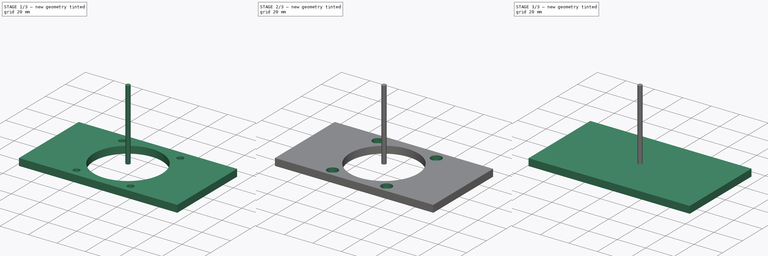
[diagram: build sequence overview — one tinted view per stage of 3, left to right]
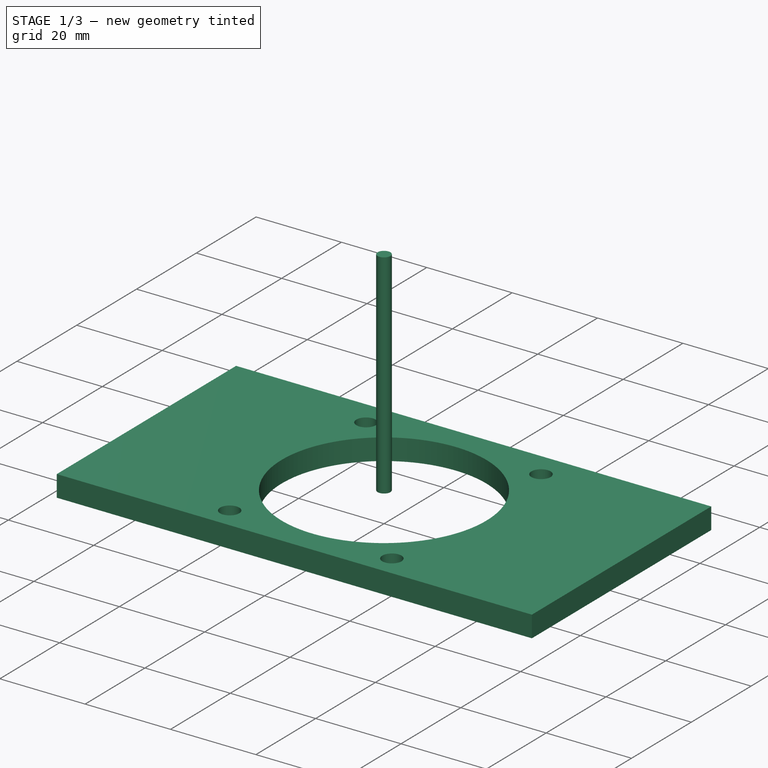
[diagram: stage 1 of 3 — iso view after this stage's code; geometry added in this stage tinted green]
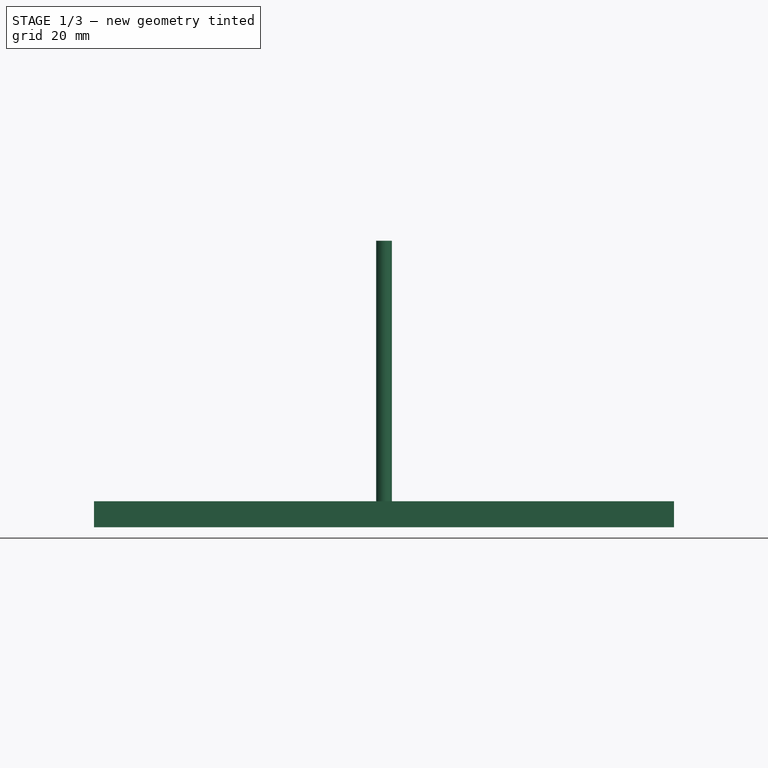
[diagram: stage 1 of 3 — front view after this stage's code; geometry added in this stage tinted green]
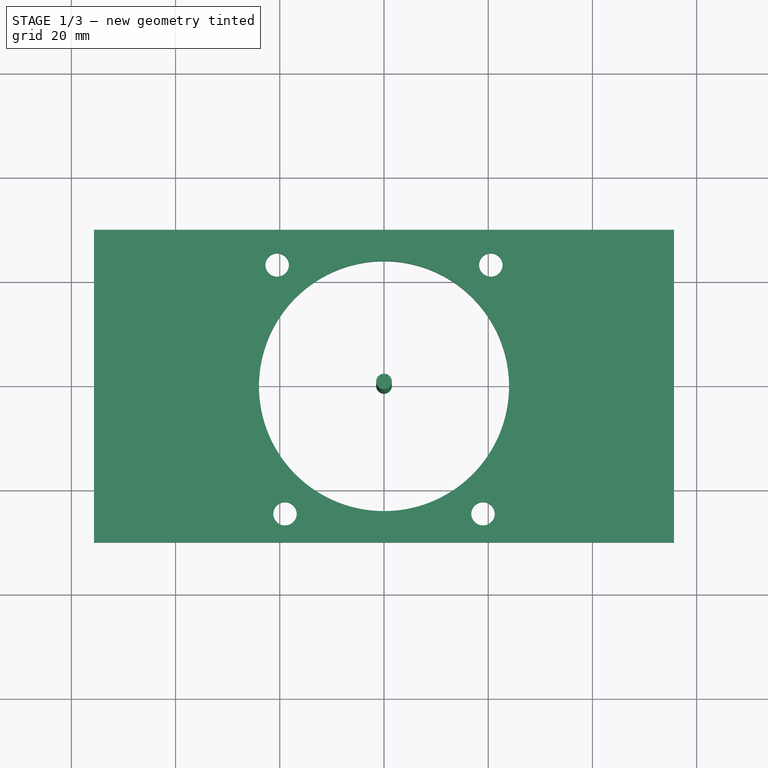
[diagram: stage 1 of 3 — top view after this stage's code; geometry added in this stage tinted green]
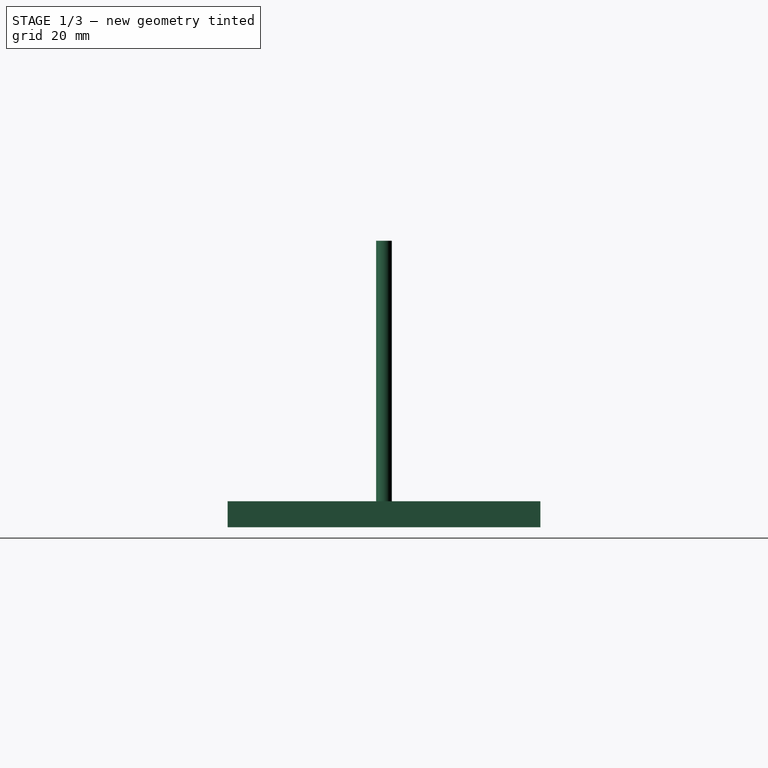
[diagram: stage 1 of 3 — right view after this stage's code; geometry added in this stage tinted green]
FCSTD DOCUMENT  (FreeCAD 1.0R38806 (Git))
Label: AngleGrinderBracket
License: All rights reserved
LicenseURL: http://en.wikipedia.org/wiki/All_rights_reserved
objects: Path::FeaturePython×4, Part::FeaturePython×3, App::DocumentObjectGroup×3, Sketcher::SketchObject×2, PartDesign::Pad×1, PartDesign::Pocket×1, PartDesign::Body×1, App::FeaturePython×1
note: 16 computed .brp shape members not serialized (recipe doc carries the construction recipe); baked Part::Feature solids carry a one-line shape summary decoded from their .brp

FEATURE [Sketcher::SketchObject] Sketch
  ArcFitTolerance = 0
  AttachmentSupport = -> [XY_Plane]
  FullyConstrained = true
  MakeInternals = false
  MapMode = 5
  sketch-geometry (14):
    g0: Circle [constr] CenterX=0 CenterY=0 CenterZ=0 NormalX=0 NormalY=0 NormalZ=1 AngleXU=0 Radius=21.15
    g1: Circle CenterX=0 CenterY=0 CenterZ=0 NormalX=0 NormalY=0 NormalZ=1 AngleXU=0 Radius=24
    g2: Circle [constr] CenterX=0 CenterY=0 CenterZ=0 NormalX=0 NormalY=0 NormalZ=1 AngleXU=0 Radius=31
    g3: LineSegment [constr] StartX=-20.5 StartY=23.254 StartZ=0 EndX=20.5 EndY=23.254 EndZ=0
    g4: LineSegment [constr] StartX=-19 StartY=-24.4949 StartZ=0 EndX=19 EndY=-24.4949 EndZ=0
    g5: Circle CenterX=-20.5 CenterY=23.254 CenterZ=0 NormalX=0 NormalY=0 NormalZ=1 AngleXU=0 Radius=2.25
    g6: Circle CenterX=20.5 CenterY=23.254 CenterZ=0 NormalX=0 NormalY=0 NormalZ=1 AngleXU=0 Radius=2.25
    g7: Circle CenterX=-19 CenterY=-24.4949 CenterZ=0 NormalX=0 NormalY=0 NormalZ=1 AngleXU=0 Radius=2.25
    g8: Circle CenterX=19 CenterY=-24.4949 CenterZ=0 NormalX=0 NormalY=0 NormalZ=1 AngleXU=0 Radius=2.25
    g9: LineSegment StartX=-55.651 StartY=-30 StartZ=0 EndX=-55.651 EndY=30 EndZ=0
    g10: LineSegment StartX=-55.651 StartY=30 StartZ=0 EndX=55.651 EndY=30 EndZ=0
    g11: LineSegment StartX=55.651 StartY=30 StartZ=0 EndX=55.651 EndY=-30 EndZ=0
    g12: LineSegment StartX=55.651 StartY=-30 StartZ=0 EndX=-55.651 EndY=-30 EndZ=0
    g13: GeomPoint [constr] X=0 Y=0 Z=0
  constraints (32):
    c: Coincident(g0,g-1)
    c: Diameter(g0) = 42.3
    c: Coincident(g1,g0)
    c: Diameter(g1) = 48
    c: Coincident(g2,g0)
    c: Radius(g2) = 31
    c: PointOnObject(g3,g2)
    c: Symmetric(g3,g3,g-2)
    c: DistanceX(g3,g3) = 41
    c: PointOnObject(g4,g2)
    c: Symmetric(g4,g4,g-2)
    c: DistanceX(g4,g4) = 38
    c: Coincident(g5,g3)
    c: Coincident(g6,g3)
    c: Coincident(g7,g4)
    c: Coincident(g8,g4)
    c: Equal(g5,g6)
    c: Equal(g5,g7)
    c: Equal(g5,g8)
    c: Radius(g5) = 2.25
    c: Coincident(g9,g10)
    c: Coincident(g10,g11)
    c: Coincident(g11,g12)
    c: Coincident(g12,g9)
    c: Horizontal(g10)
    c: Horizontal(g12)
    c: Vertical(g9)
    c: Vertical(g11)
    c: Symmetric(g10,g9,g13)
    c: Coincident(g13,g1)
    c: DistanceX(g10,g10) = 111.302
    c: DistanceY(g11,g11) = 60
FEATURE [PartDesign::Pad] Pad
  Direction = (0,0,1)
  Length = 5
  Length2 = 10
  Profile = -> Sketch
  ReferenceAxis = -> Sketch [N_Axis]
  Refine = true
  Reversed = true
  Suppressed = false
  Type = 0
FEATURE [Part::FeaturePython] ToolBit001  label="3mm Endmill"  # Path/CAM toolbit (typed FeaturePython)
  BitPropertyNames = Chipload | CuttingEdgeHeight | Diameter | Flutes | Length | Material | ShankDiameter | SpindleDirection
  BitShape = <path>
  Chipload = 0
  CuttingEdgeHeight = 15
  Diameter = 3
  File = <userpath>/Desktop/CNC/ToolBit/Bit/3mm_Endmill.fctb
  Flutes = 0
  Length = 50
  Material = 0
  ShankDiameter = 3
  ShapeName = endmill
  SpindleDirection = 0
FEATURE [Path::FeaturePython] _mm_Endmill  label="3mm Endmill001"  # Path/CAM operation (typed FeaturePython)
  HorizFeed = 3.33333
  HorizRapid = 0
  SpindleDir = 0
  SpindleSpeed = 10000
  Tool = -> ToolBit001
  ToolNumber = 2
  VertFeed = 3.33333
  VertRapid = 0
  expr: HorizRapid = SetupSheet.HorizRapid
  expr: VertRapid = SetupSheet.VertRapid
FEATURE [App::DocumentObjectGroup] Tools
  Group = -> [_mm_Endmill]
FEATURE [Path::FeaturePython] Adaptive  # Path/CAM operation (typed FeaturePython)
  Active = true
  Base = -> [Clone]
  ClearanceHeight = 15
  CoolantMode = 0
  CycleTime = 00:03:50
  ExtensionCorners = true
  ExtensionLengthDefault = 1.5
  FinalDepth = -3
  FinishDepth = 0
  FinishingProfile = true
  ForceInsideOut = false
  HelixAngle = 5
  HelixConeAngle = 0
  HelixDiameterLimit = 1
  KeepToolDownRatio = 3
  LiftDistance = 0
  OpFinalDepth = -3
  OpStartDepth = 0
  OpStockZMax = 0
  OpStockZMin = -5
  OpToolDiameter = 3
  OperationType = 0
  SafeHeight = 13
  Side = 1
  StartDepth = 0
  StepDown = 3
  StepOver = 20
  StockToLeave = 0
  StopProcessing = false
  Stopped = false
  Tolerance = 0.1
  ToolController = -> _mm_Endmill
  UseHelixArcs = false
  UseOutline = false
  expr: ClearanceHeight = OpStockZMax + SetupSheet.ClearanceHeightOffset + 10 mm
  expr: ExtensionLengthDefault = OpToolDiameter / 2
  expr: FinalDepth = OpFinalDepth
  expr: SafeHeight = OpStockZMax + SetupSheet.SafeHeightOffset + 10 mm
  expr: StartDepth = OpStartDepth
  expr: StepDown = OpToolDiameter
FEATURE [Path::FeaturePython] Adaptive001  # Path/CAM operation (typed FeaturePython)
  Active = true
  Base = -> [Clone]
  ClearanceHeight = 5
  CoolantMode = 0
  CycleTime = 00:20:02
  ExtensionCorners = true
  ExtensionLengthDefault = 1.5
  FinalDepth = -5
  FinishDepth = 0
  FinishingProfile = true
  ForceInsideOut = false
  HelixAngle = 5
  HelixConeAngle = 0
  HelixDiameterLimit = 1
  KeepToolDownRatio = 3
  LiftDistance = 0
  OpFinalDepth = -5
  OpStartDepth = 0
  OpStockZMax = 0
  OpStockZMin = -5
  OpToolDiameter = 3
  OperationType = 0
  SafeHeight = 3
  Side = 1
  StartDepth = 0
  StepDown = 6
  StepOver = 20
  StockToLeave = 0
  StopProcessing = false
  Stopped = false
  Tolerance = 0.1
  ToolController = -> _mm_Endmill
  UseHelixArcs = false
  UseOutline = false
  expr: ClearanceHeight = OpStockZMax + SetupSheet.ClearanceHeightOffset
  expr: ExtensionLengthDefault = OpToolDiameter / 2
  expr: FinalDepth = OpFinalDepth
  expr: SafeHeight = OpStockZMax + SetupSheet.SafeHeightOffset
  expr: StartDepth = OpStartDepth
  expr: StepDown = OpToolDiameter * 2
FEATURE [App::DocumentObjectGroup] Operations
  Group = -> [Adaptive,Adaptive001]
FEATURE [Path::FeaturePython] Job  # Path/CAM operation (typed FeaturePython)
  CycleTime = 00:23:52
  Fixtures = G54
  GeometryTolerance = 0.01
  JobType = 0
  Model = -> Model
  Operations = -> Operations
  OrderOutputBy = 0
  PostProcessor = 11
  PostProcessorArgs = --bcnc
  PostProcessorOutputFile = %D%d.nc
  SetupSheet = -> SetupSheet
  SplitOutput = false
  Stock = -> Stock
  Tools = -> Tools
note: 1 file-system path scrubbed to <path> (originals preserved in the JSON sidecar)
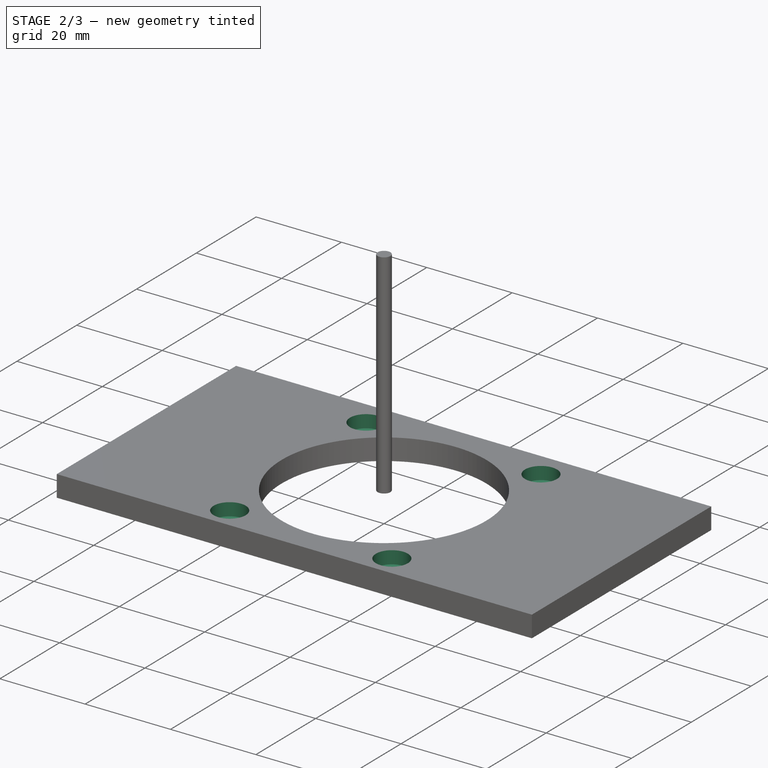
[diagram: stage 2 of 3 — iso view after this stage's code; geometry added in this stage tinted green]
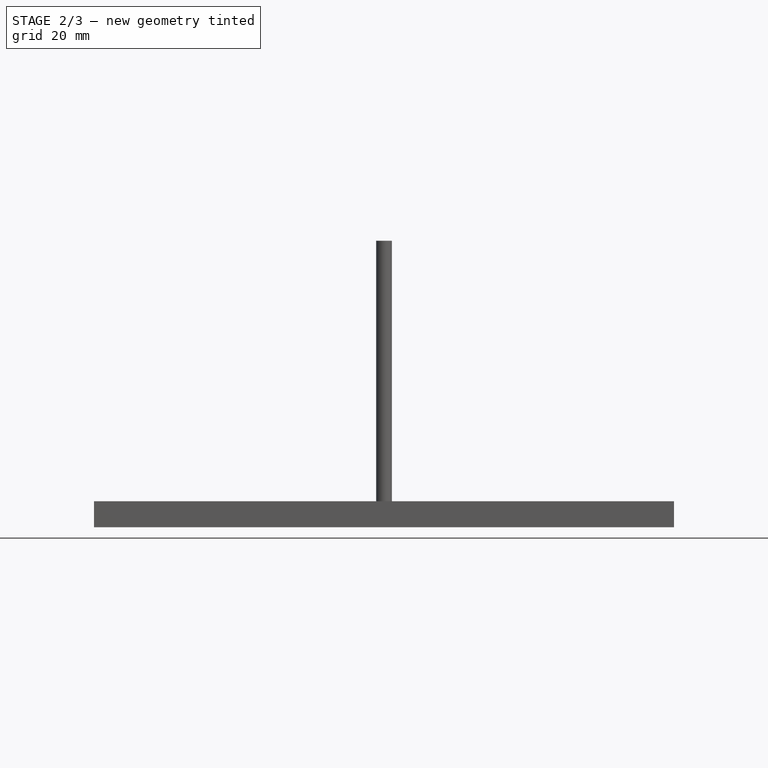
[diagram: stage 2 of 3 — front view after this stage's code; geometry added in this stage tinted green]
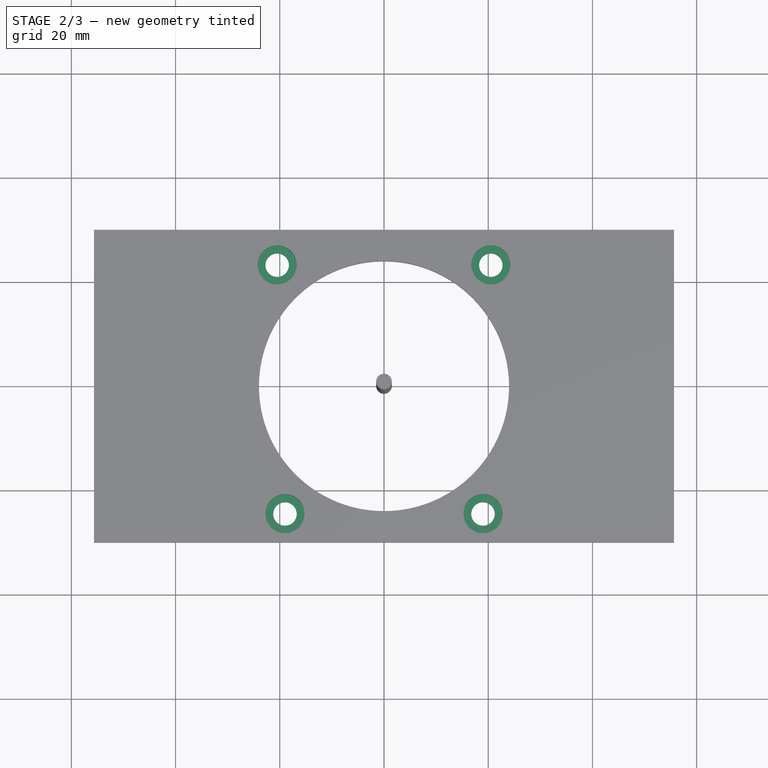
[diagram: stage 2 of 3 — top view after this stage's code; geometry added in this stage tinted green]
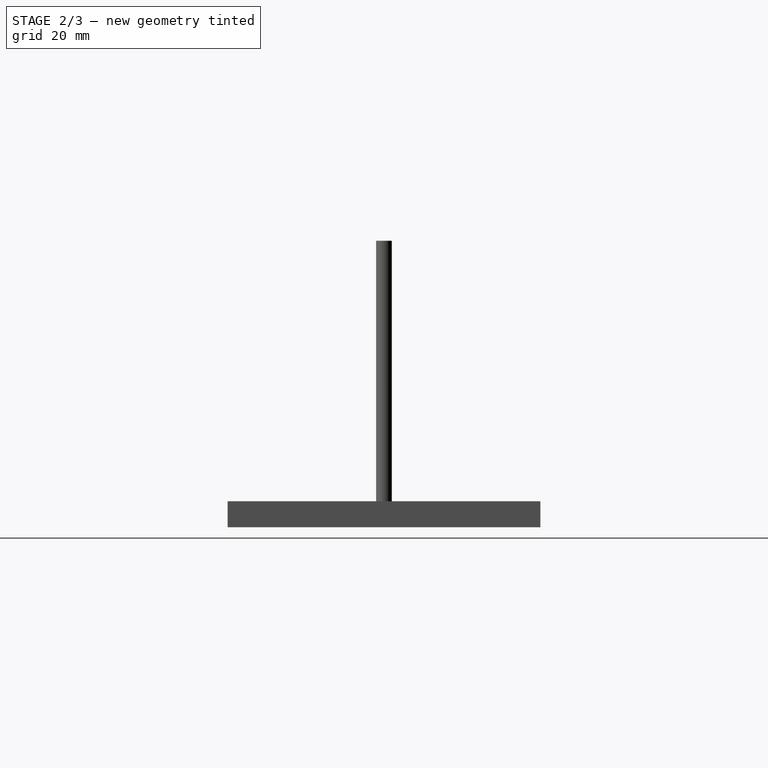
[diagram: stage 2 of 3 — right view after this stage's code; geometry added in this stage tinted green]
FEATURE [Sketcher::SketchObject] Sketch001
  ArcFitTolerance = 0
  AttachmentSupport = -> [Pad]
  ExternalGeometry = -> [Pad]
  FullyConstrained = true
  MakeInternals = false
  MapMode = 5
  sketch-geometry (4):
    g0: Circle CenterX=-20.5 CenterY=23.254 CenterZ=0 NormalX=0 NormalY=0 NormalZ=1 AngleXU=0 Radius=3.75
    g1: Circle CenterX=20.5 CenterY=23.254 CenterZ=0 NormalX=0 NormalY=0 NormalZ=1 AngleXU=0 Radius=3.75
    g2: Circle CenterX=-19 CenterY=-24.4949 CenterZ=0 NormalX=0 NormalY=0 NormalZ=1 AngleXU=0 Radius=3.75
    g3: Circle CenterX=19 CenterY=-24.4949 CenterZ=0 NormalX=0 NormalY=0 NormalZ=1 AngleXU=0 Radius=3.75
  constraints (8):
    c: Coincident(g0,g-3)
    c: Coincident(g1,g-4)
    c: Coincident(g2,g-5)
    c: Coincident(g3,g-6)
    c: Equal(g0,g1)
    c: Equal(g0,g2)
    c: Equal(g0,g3)
    c: Diameter(g0) = 7.5
FEATURE [PartDesign::Pocket] Pocket
  BaseFeature = -> Pad
  Direction = (0,0,-1)
  Length = 3
  Length2 = 5
  Profile = -> Sketch001
  ReferenceAxis = -> Sketch001 [N_Axis]
  Refine = true
  Suppressed = false
  Type = 0
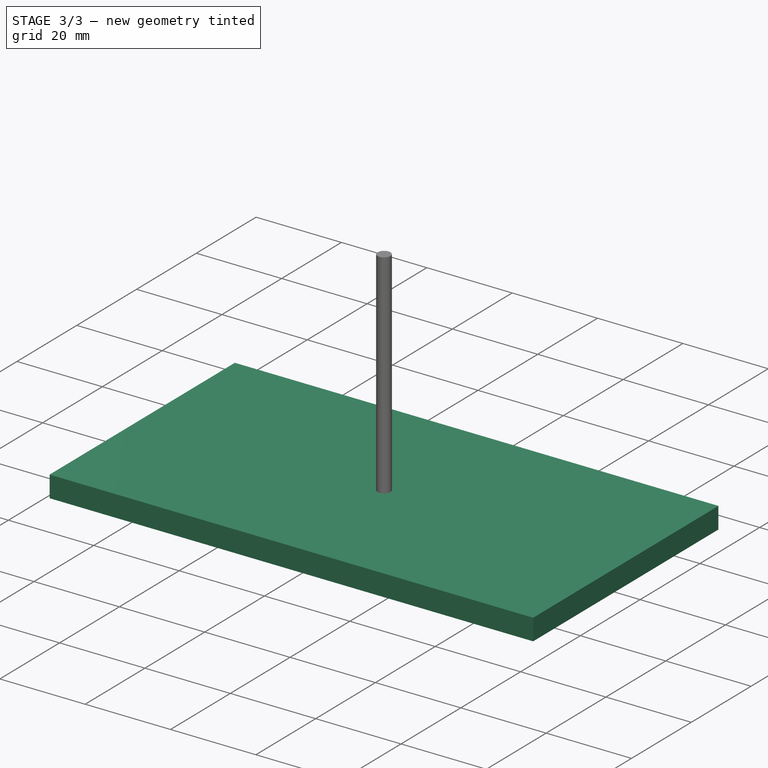
[diagram: stage 3 of 3 — iso view after this stage's code; geometry added in this stage tinted green]
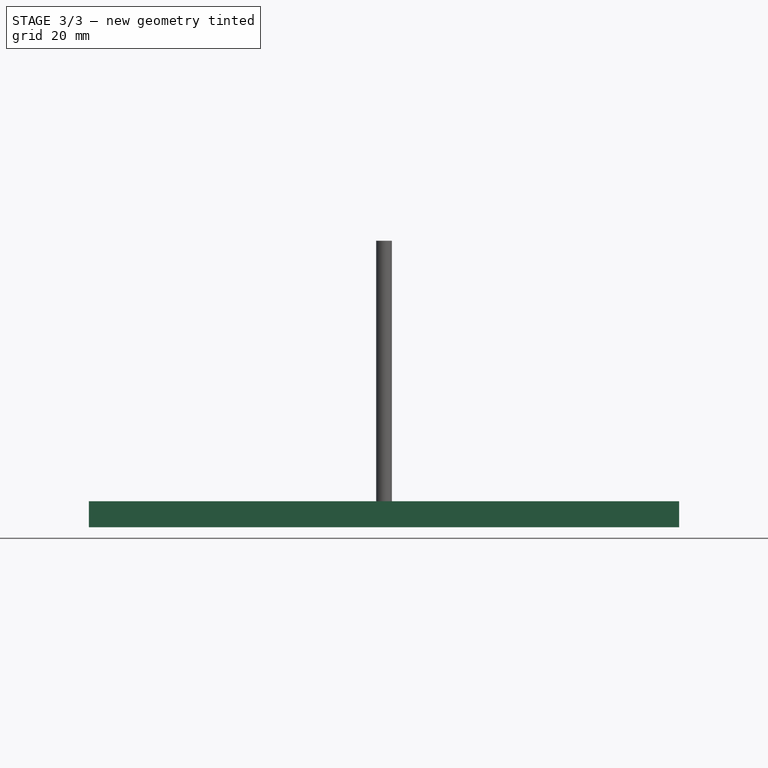
[diagram: stage 3 of 3 — front view after this stage's code; geometry added in this stage tinted green]
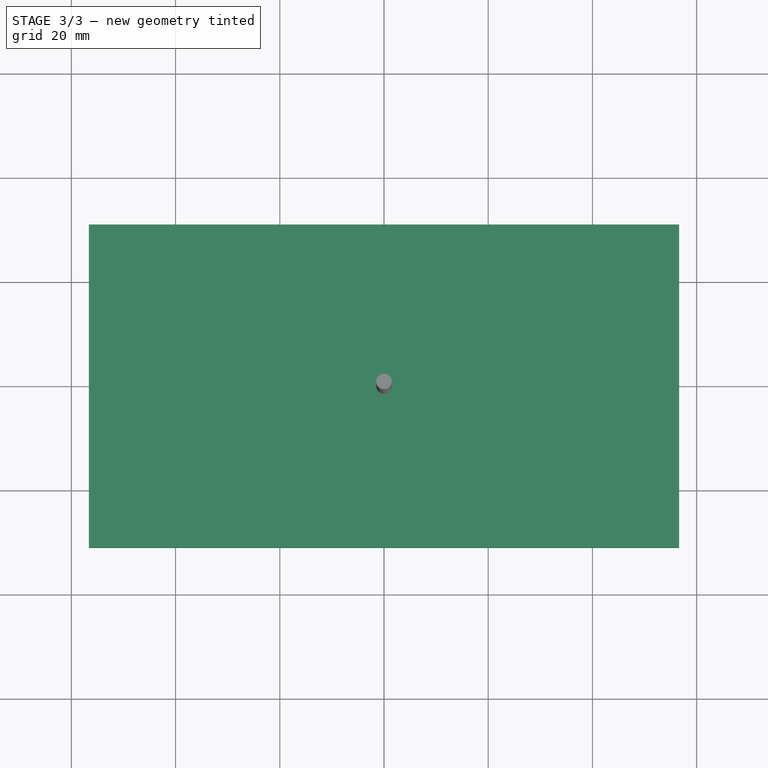
[diagram: stage 3 of 3 — top view after this stage's code; geometry added in this stage tinted green]
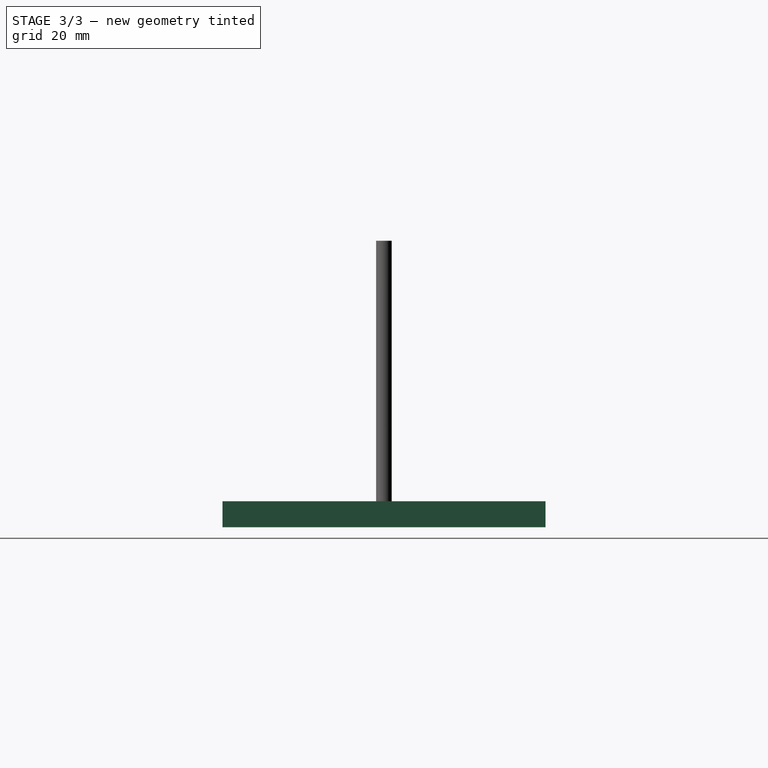
[diagram: stage 3 of 3 — right view after this stage's code; geometry added in this stage tinted green]
FEATURE [PartDesign::Body] Body
  AllowCompound = false
  Group = -> [Sketch,Pad,Sketch001,Pocket]
  Origin = -> Origin
  Tip = -> Pocket
FEATURE [App::FeaturePython] SetupSheet  # Path/CAM operation (typed FeaturePython)
  ClearanceHeightExpression = OpStockZMax+SetupSheet.ClearanceHeightOffset
  ClearanceHeightOffset = 5
  CoolantMode = 0
  CoolantModes = None | Flood | Mist
  FinalDepthExpression = OpFinalDepth
  HorizRapid = 0
  SafeHeightExpression = OpStockZMax+SetupSheet.SafeHeightOffset
  SafeHeightOffset = 3
  StartDepthExpression = OpStartDepth
  StepDownExpression = OpToolDiameter
  VertRapid = 0
FEATURE [Part::FeaturePython] Clone  label="Model-Body"  # Draft clone (typed FeaturePython)
  AttacherType = Attacher::AttachEngine3D
  Fuse = false
  Objects = -> [Body]
  PathResource = Model
  Scale = (1,1,1)
FEATURE [App::DocumentObjectGroup] Model
  Group = -> [Clone]
FEATURE [Part::FeaturePython] Stock  # WARN: FeaturePython — macro-defined, semantics opaque (R4)
  Base = -> Model
  ExtXneg = 1
  ExtXpos = 1
  ExtYneg = 1
  ExtYpos = 1
  ExtZneg = 0
  ExtZpos = 0
  Placement = pos=(-55.651,-30,-5) rot=(0,0,1;0rad)
  StockType = FromBase
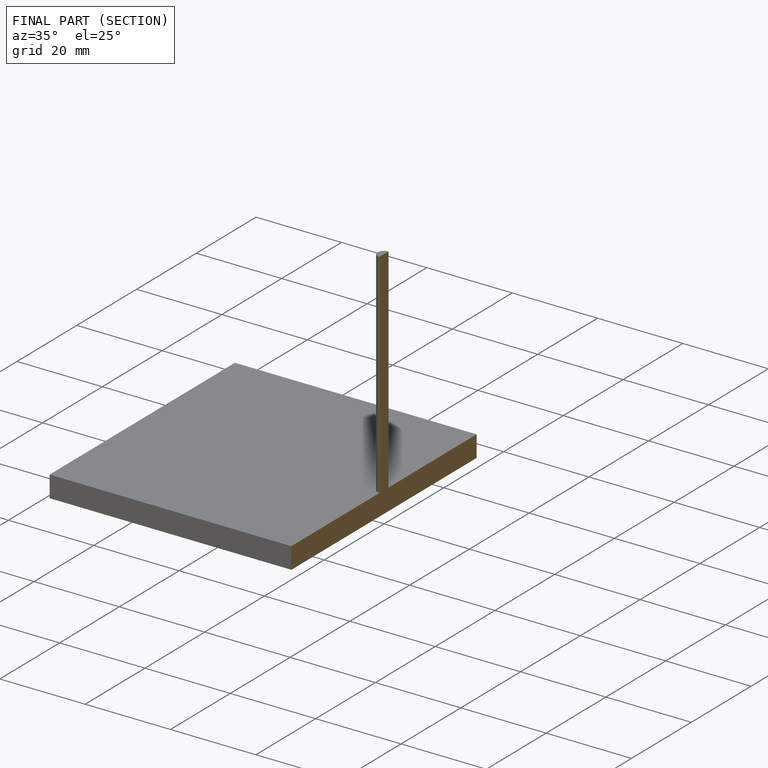
[diagram: finished part — half-section view (interior)]
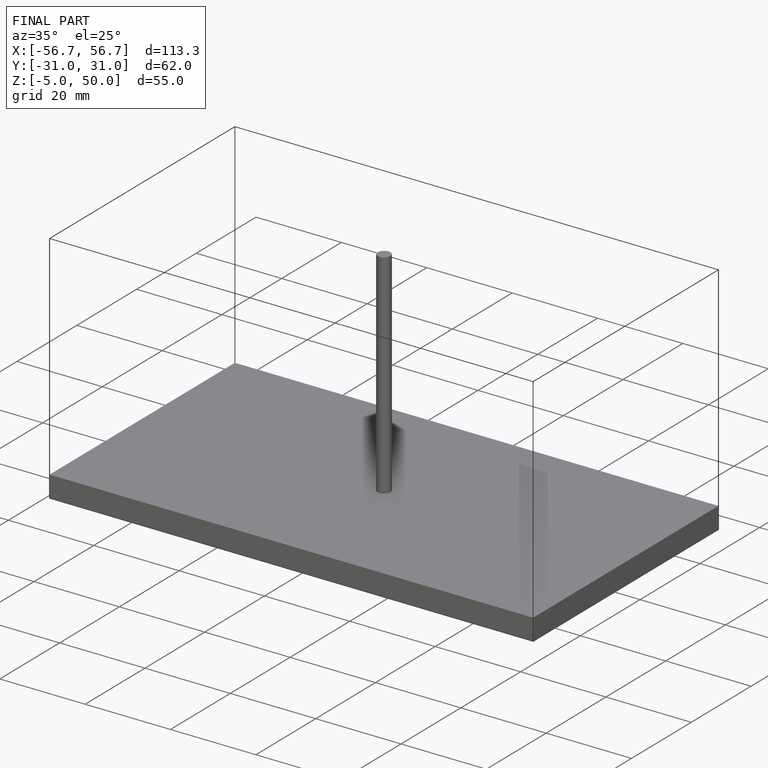
[diagram: finished part — iso view with bounding-box wireframe]
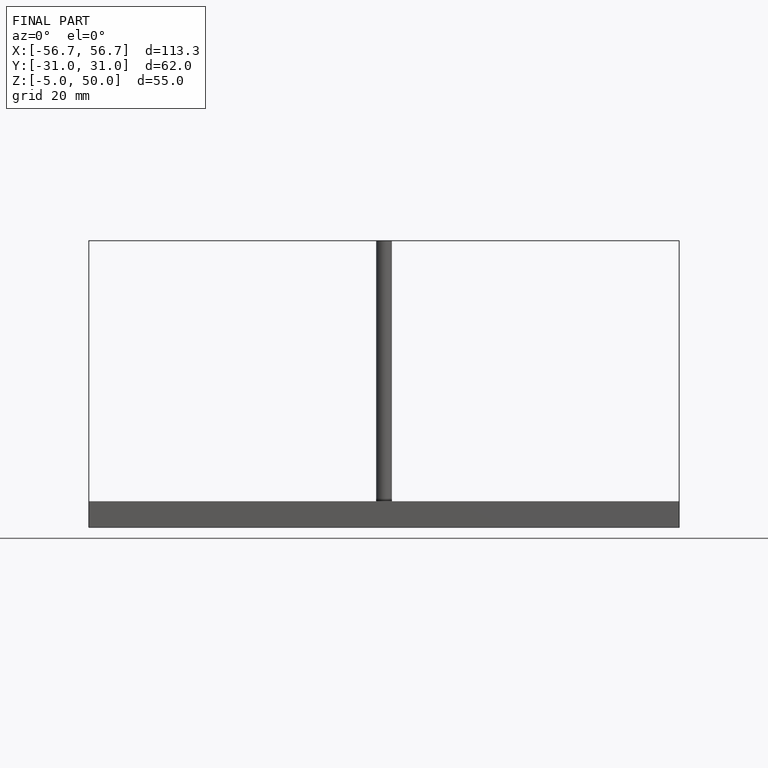
[diagram: finished part — front view with bounding-box wireframe]
